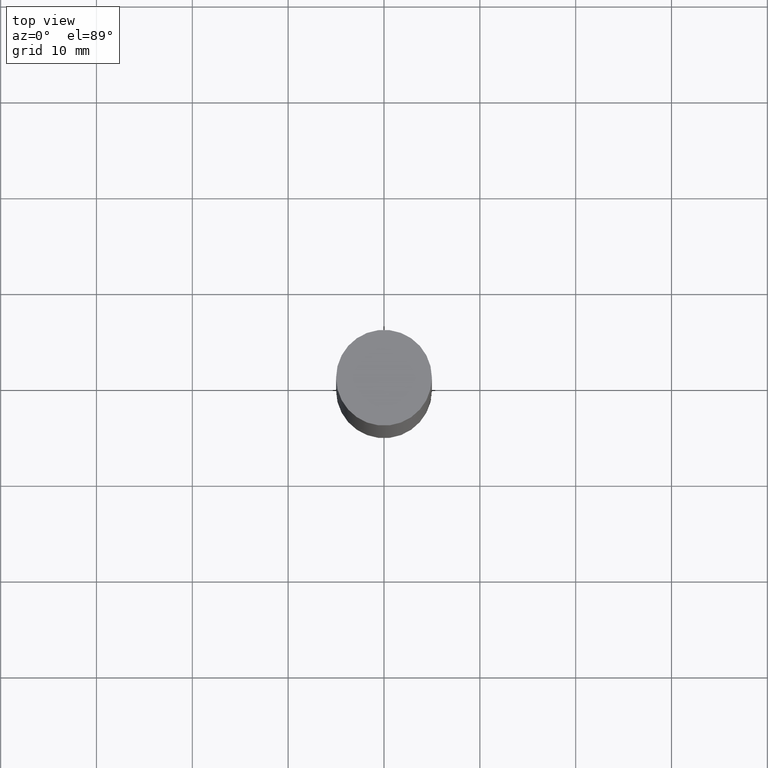
[diagram: clean part render]
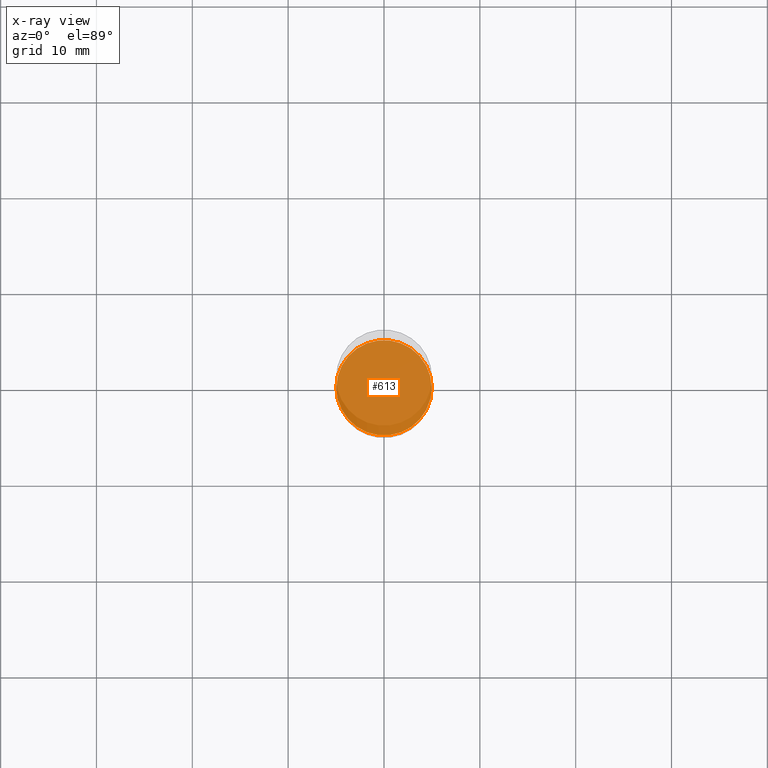
[diagram: x-ray — body ghosted, one internal face saturated and labeled with its STEP entity id]
A machine part, top view, then the same camera in x-ray: the body is ghosted and one INTERNAL B-rep face — a face not visible from any outside direction — is saturated and labeled: STEP entity #613.
In plain terms, the highlighted planar face has unit normal (-0, 0, 1).
Its self-contained STEP definition (entity closure, byte-faithful):
#30 = CARTESIAN_POINT ( 'NONE',  ( 0.1958499999999999963, -9.752754823790552857E-15, -2.401599999999999735 ) ) ;
#44 = CIRCLE ( 'NONE', #467, 0.1958499999999999963 ) ;
#46 = VERTEX_POINT ( 'NONE', #441 ) ;
#109 = DIRECTION ( 'NONE',  ( -2.445468806185136597E-29, 3.491481338843145583E-15, 1.000000000000000000 ) ) ;
#118 = DIRECTION ( 'NONE',  ( 1.000000000000000000, -6.982962677686262766E-15, 0.000000000000000000 ) ) ;
#255 = FACE_OUTER_BOUND ( 'NONE', #508, .T. ) ;
#262 = DIRECTION ( 'NONE',  ( -2.438088387897960049E-29, 3.491481338843145188E-15, 1.000000000000000000 ) ) ;
#297 = EDGE_CURVE ( 'NONE', #46, #450, #435, .T. ) ;
#302 = ORIENTED_EDGE ( 'NONE', *, *, #642, .F. ) ;
#312 = DIRECTION ( 'NONE',  ( 1.000000000000000000, -6.982962677686265922E-15, 4.876176775795935793E-29 ) ) ;
#356 = PLANE ( 'NONE',  #607 ) ;
#403 = ORIENTED_EDGE ( 'NONE', *, *, #297, .F. ) ;
#417 = DIRECTION ( 'NONE',  ( -2.445468806185136597E-29, 3.491481338843145583E-15, 1.000000000000000000 ) ) ;
#435 = CIRCLE ( 'NONE', #465, 0.1958499999999999963 ) ;
#441 = CARTESIAN_POINT ( 'NONE',  ( -0.1958499999999999963, -6.988245181031318870E-15, -2.401599999999999735 ) ) ;
#450 = VERTEX_POINT ( 'NONE', #30 ) ;
#459 = DIRECTION ( 'NONE',  ( 1.000000000000000000, -6.982962677686262766E-15, 0.000000000000000000 ) ) ;
#465 = AXIS2_PLACEMENT_3D ( 'NONE', #627, #109, #118 ) ;
#467 = AXIS2_PLACEMENT_3D ( 'NONE', #568, #417, #459 ) ;
#508 = EDGE_LOOP ( 'NONE', ( #302, #403 ) ) ;
#568 = CARTESIAN_POINT ( 'NONE',  ( 5.873037884934223228E-29, -8.385141583365697263E-15, -2.401599999999999735 ) ) ;
#577 = CARTESIAN_POINT ( 'NONE',  ( 5.873037884934223228E-29, -8.385141583365697263E-15, -2.401599999999999735 ) ) ;
#607 = AXIS2_PLACEMENT_3D ( 'NONE', #577, #262, #312 ) ;
#613 = ADVANCED_FACE ( 'NONE', ( #255 ), #356, .F. ) ;
#627 = CARTESIAN_POINT ( 'NONE',  ( 5.873037884934223228E-29, -8.385141583365697263E-15, -2.401599999999999735 ) ) ;
#642 = EDGE_CURVE ( 'NONE', #450, #46, #44, .T. ) ;